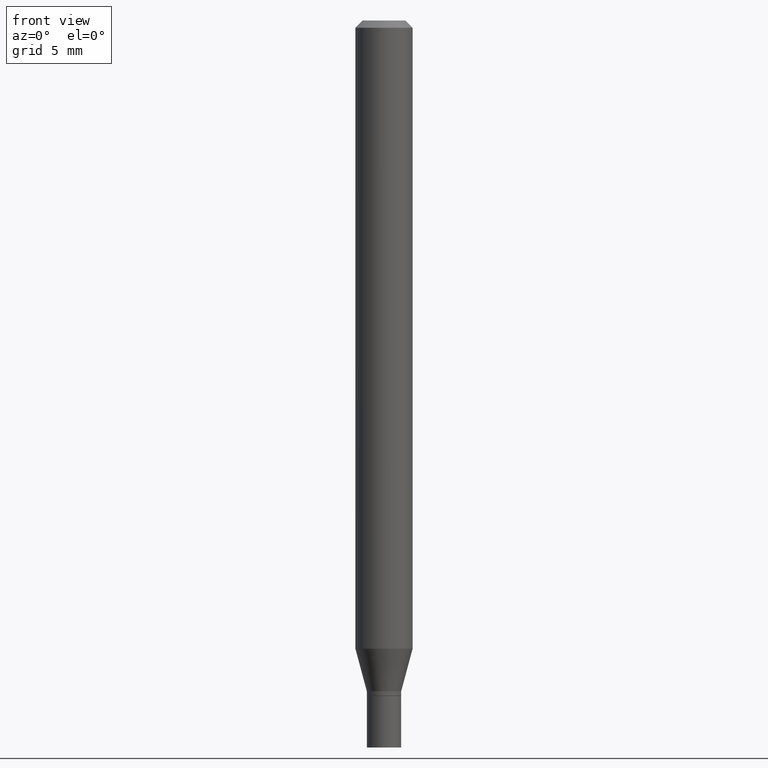
[diagram: clean part render]
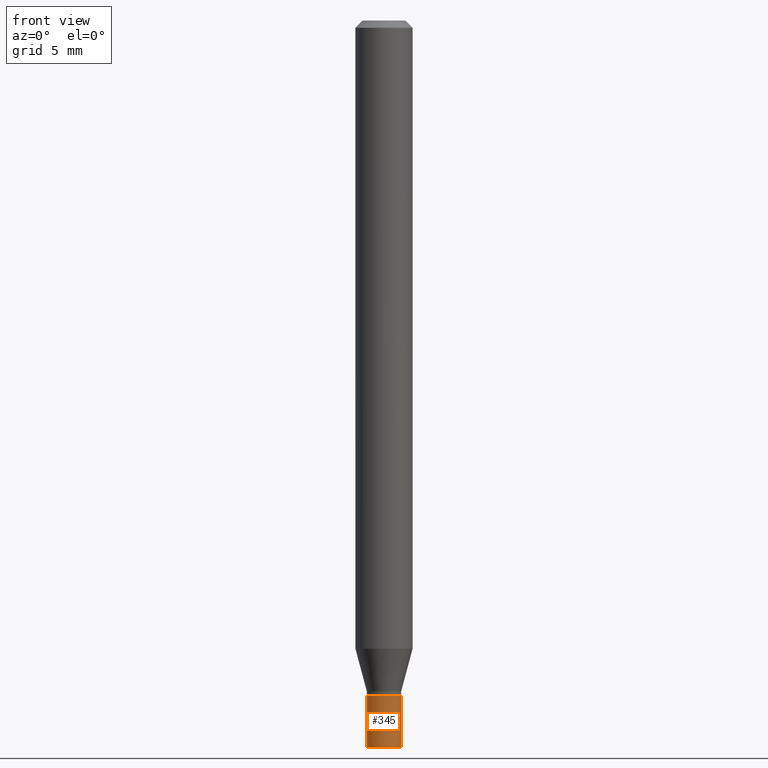
[diagram: same view with one face highlighted and labeled with its STEP entity id]
A machine part, front view. The second image highlights one B-rep face of the part: STEP entity #345.
In plain terms, the highlighted cylindrical surface (edge-blend (fillet) strip) has radius 0.9004 mm, axis along (-0, 0, 1).
Its self-contained STEP definition (entity closure, byte-faithful):
#6 = CARTESIAN_POINT ( 'NONE',  ( 3.408249875180225636E-29, -4.866077541945693107E-15, -1.393700000000000161 ) ) ;
#13 = AXIS2_PLACEMENT_3D ( 'NONE', #46, #370, #89 ) ;
#33 = EDGE_CURVE ( 'NONE', #204, #63, #454, .T. ) ;
#46 = CARTESIAN_POINT ( 'NONE',  ( 3.668203209277704895E-29, -5.237222008264718177E-15, -1.500000000000000222 ) ) ;
#62 = VECTOR ( 'NONE', #109, 39.37007874015748143 ) ;
#63 = VERTEX_POINT ( 'NONE', #216 ) ;
#71 = EDGE_CURVE ( 'NONE', #242, #204, #277, .T. ) ;
#76 = CARTESIAN_POINT ( 'NONE',  ( -0.03545000000000000234, 2.518873998269555325E-16, -1.743762489495364089E-30 ) ) ;
#89 = DIRECTION ( 'NONE',  ( 1.000000000000000000, -6.982962677686254089E-15, 0.000000000000000000 ) ) ;
#105 = DIRECTION ( 'NONE',  ( -2.445468806185136597E-29, 3.491481338843145583E-15, 1.000000000000000000 ) ) ;
#109 = DIRECTION ( 'NONE',  ( -2.445468806185136877E-29, 3.491481338843145188E-15, 1.000000000000000000 ) ) ;
#112 = DIRECTION ( 'NONE',  ( 1.000000000000000000, -6.982962677686254089E-15, 0.000000000000000000 ) ) ;
#116 = VECTOR ( 'NONE', #329, 39.37007874015748143 ) ;
#178 = DIRECTION ( 'NONE',  ( -2.445468806185136597E-29, 3.491481338843145583E-15, 1.000000000000000000 ) ) ;
#196 = DIRECTION ( 'NONE',  ( 1.000000000000000000, -6.982962677686266711E-15, 4.876176775795935793E-29 ) ) ;
#204 = VERTEX_POINT ( 'NONE', #322 ) ;
#208 = CYLINDRICAL_SURFACE ( 'NONE', #374, 0.03545000000000000234 ) ;
#216 = CARTESIAN_POINT ( 'NONE',  ( 0.03545000000000000234, -5.113623568869670202E-15, -1.393700000000000161 ) ) ;
#242 = VERTEX_POINT ( 'NONE', #395 ) ;
#253 = CARTESIAN_POINT ( 'NONE',  ( -0.03545000000000000234, -4.799762375278250257E-15, -1.393700000000000161 ) ) ;
#262 = EDGE_CURVE ( 'NONE', #242, #463, #392, .T. ) ;
#274 = EDGE_LOOP ( 'NONE', ( #360, #461, #432, #351 ) ) ;
#277 = CIRCLE ( 'NONE', #13, 0.03545000000000000234 ) ;
#289 = CARTESIAN_POINT ( 'NONE',  ( 0.000000000000000000, 0.000000000000000000, 0.000000000000000000 ) ) ;
#318 = EDGE_CURVE ( 'NONE', #463, #63, #438, .T. ) ;
#322 = CARTESIAN_POINT ( 'NONE',  ( 0.03545000000000000234, -5.484768035188696060E-15, -1.500000000000000222 ) ) ;
#329 = DIRECTION ( 'NONE',  ( -2.445468806185136877E-29, 3.491481338843145188E-15, 1.000000000000000000 ) ) ;
#339 = CARTESIAN_POINT ( 'NONE',  ( 0.03545000000000000234, -2.475460269239781793E-16, 1.728604667019659440E-30 ) ) ;
#345 = ADVANCED_FACE ( 'NONE', ( #427 ), #208, .T. ) ;
#351 = ORIENTED_EDGE ( 'NONE', *, *, #318, .F. ) ;
#360 = ORIENTED_EDGE ( 'NONE', *, *, #262, .F. ) ;
#370 = DIRECTION ( 'NONE',  ( -2.445468806185136597E-29, 3.491481338843145583E-15, 1.000000000000000000 ) ) ;
#374 = AXIS2_PLACEMENT_3D ( 'NONE', #289, #178, #196 ) ;
#392 = LINE ( 'NONE', #76, #62 ) ;
#395 = CARTESIAN_POINT ( 'NONE',  ( -0.03545000000000000234, -4.799762375278250257E-15, -1.500000000000000222 ) ) ;
#423 = AXIS2_PLACEMENT_3D ( 'NONE', #6, #105, #112 ) ;
#427 = FACE_OUTER_BOUND ( 'NONE', #274, .T. ) ;
#432 = ORIENTED_EDGE ( 'NONE', *, *, #33, .T. ) ;
#438 = CIRCLE ( 'NONE', #423, 0.03545000000000000234 ) ;
#454 = LINE ( 'NONE', #339, #116 ) ;
#461 = ORIENTED_EDGE ( 'NONE', *, *, #71, .T. ) ;
#463 = VERTEX_POINT ( 'NONE', #253 ) ;